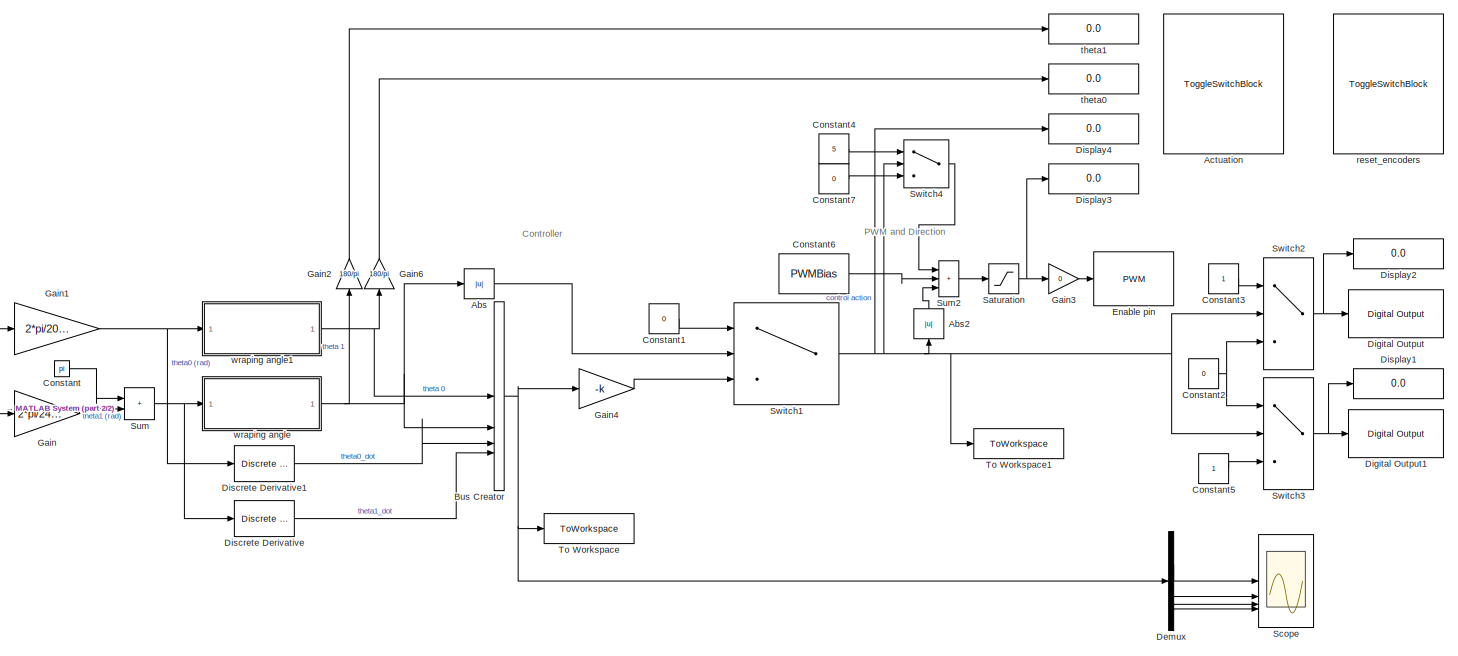
[diagram: root canvas - part 1/2, most of the canvas]
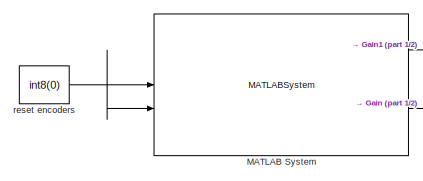
[diagram: root canvas - part 2/2, middle left region]
MODEL slx_16f599e33e60
KIND model
CONFIG AbsTol = auto
CONFIG EnableMultiTasking = on
CONFIG FixedStep = 0.005
CONFIG MaxStep = auto
CONFIG MinStep = auto
CONFIG RelTol = 1e-3
CONFIG SampleTimeConstraint = Unconstrained
CONFIG SolverName = FixedStepDiscrete
CONFIG StartTime = 0.0
CONFIG StopTime = inf
BLOCK [Abs] Abs
  SaturateOnIntegerOverflow = off
BLOCK [Abs] Abs2
  NameLocation = right
  SaturateOnIntegerOverflow = off
BLOCK [ToggleSwitchBlock] Actuation
  LabelPosition = Hide
BLOCK [BusCreator] Bus Creator
  DisplayOption = bar
  InheritFromInputs = on
  Inputs = 4
BLOCK [Constant] Constant
  Value = pi
BLOCK [Constant] Constant1
  Value = 0
BLOCK [Constant] Constant2
  Value = 0
BLOCK [Constant] Constant3
BLOCK [Constant] Constant4
  Value = 5
BLOCK [Constant] Constant5
BLOCK [Constant] Constant6
  Value = PWMBias
BLOCK [Constant] Constant7
  Value = 0
BLOCK [Demux] Demux
BLOCK [Reference] Digital Output  REF=arduinolib/Digital Output
  SourceBlock = arduinolib/Digital Output
  SourceType = Arduino Digital Output
BLOCK [Reference] Digital Output1  REF=arduinolib/Digital Output
  SourceBlock = arduinolib/Digital Output
  SourceType = Arduino Digital Output
BLOCK [Reference] Discrete Derivative  REF=simulink/Discrete/Discrete Derivative
  SourceBlock = simulink/Discrete/Discrete Derivative
  SourceType = Discrete Derivative
BLOCK [Reference] Discrete Derivative1  REF=simulink/Discrete/Discrete Derivative
  SourceBlock = simulink/Discrete/Discrete Derivative
  SourceType = Discrete Derivative
BLOCK [Display] Display1
  Decimation = 1
BLOCK [Display] Display2
  Decimation = 1
BLOCK [Display] Display3
  Decimation = 1
BLOCK [Display] Display4
  Decimation = 1
BLOCK [Reference] Enable pin  REF=arduinolib/PWM
  SourceBlock = arduinolib/PWM
  SourceType = Arduino PWM
BLOCK [Gain] Gain
  Gain = 2*pi/2400
  ParamDataTypeStr = double
BLOCK [Gain] Gain1
  Gain = 2*pi/2000
  ParamDataTypeStr = double
BLOCK [Gain] Gain2
  Gain = 180/pi
  NameLocation = right
BLOCK [Gain] Gain3
  Gain = 0
BLOCK [Gain] Gain4
  Gain = -k
  Multiplication = Matrix(K*u) (u vector)
BLOCK [Gain] Gain6
  Gain = 180/pi
  NameLocation = right
BLOCK [MATLABSystem] MATLAB System
  Enc0A_Pin = 27
  Enc0B_Pin = 26
  Enc1A_Pin = 25
  Enc1B_Pin = 33
  MaskDisplay = color('white');plot([100,100,100,100]*1,[100,100,100,100]*1);plot([100,100,100,100]*0,[100,100,100,100]*0);color('blue');text(38, 92, 'IO Device Builder','horizontalAlignment', 'right');\ncolor('black');text(52,50,' DualEncoder','horizontalAlignment','center');\nport_label('input',1,'Reset_Enc0');port_label('input',2,'Reset_Enc1');port_label('output',1,'Enc0_Count');port_label('output',2,'Enc1_Count...<+3ch>
  MaskType = DualEncoder
  SampleTime = -1
  System = DualEncoder
BLOCK [Saturate] Saturation
  LowerLimit = 0
  UpperLimit = PWMSat
BLOCK [Scope] Scope
  Floating = off
  NumInputPorts = 4
  ScopeSpecificationString = Simulink.scopes.TimeScopeBlockCfg('CurrentConfiguration', extmgr.ConfigurationSet(extmgr.Configuration('Core','General UI',true),extmgr.Configuration('Core','Source UI',true),extmgr.Configuration('Sources','WiredSimulink',true,'DataLoggingVariableName','ScopeData1'),extmgr.Configuration('Visuals','Time Domain',true,'SerializedDisplays',{struct('MinYLimReal','-1.00000','MaxYLimReal','1.00000','YLab...<+3408ch>
BLOCK [Sum] Sum
  IconShape = rectangular
  Inputs = |++
BLOCK [Sum] Sum2
  IconShape = rectangular
  Inputs = |+++
BLOCK [Switch] Switch1
  Criteria = u2 > Threshold
  InputSameDT = off
  SaturateOnIntegerOverflow = off
  Threshold = 0.9
BLOCK [Switch] Switch2
  Criteria = u2 > Threshold
  InputSameDT = off
  SaturateOnIntegerOverflow = off
BLOCK [Switch] Switch3
  Criteria = u2 > Threshold
  InputSameDT = off
  SaturateOnIntegerOverflow = off
BLOCK [Switch] Switch4
  Criteria = u2 > Threshold
  InputSameDT = off
  SaturateOnIntegerOverflow = off
BLOCK [ToWorkspace] To Workspace
  FixptAsFi = on
  MaxDataPoints = 500
  SampleTime = -1
  SaveFormat = Timeseries
  VariableName = X_Mat
BLOCK [ToWorkspace] To Workspace1
  FixptAsFi = on
  MaxDataPoints = inf
  SampleTime = -1
  SaveFormat = Timeseries
  VariableName = Effort
BLOCK [Constant] reset encoders
  Value = int8(0)
BLOCK [ToggleSwitchBlock] reset_encoders
  LabelPosition = Hide
BLOCK [Display] theta0
  Decimation = 1
BLOCK [Display] theta1
  Decimation = 1
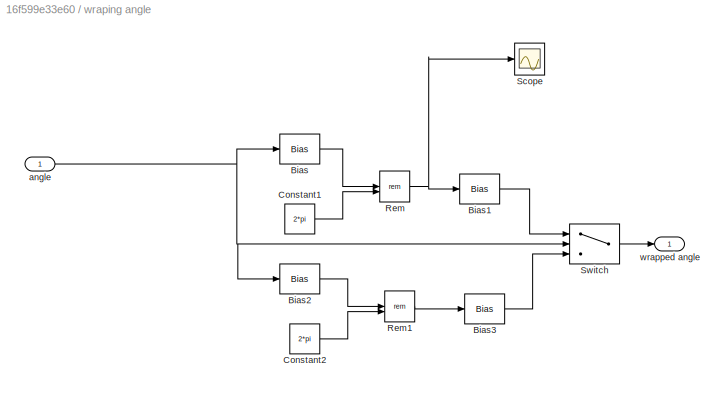
BLOCK [SubSystem] wraping angle
BLOCK [Bias] wraping angle/Bias
  Bias = pi
  SaturateOnIntegerOverflow = off
BLOCK [Bias] wraping angle/Bias1
  Bias = -pi
  SaturateOnIntegerOverflow = off
BLOCK [Bias] wraping angle/Bias2
  Bias = -pi
  SaturateOnIntegerOverflow = off
BLOCK [Bias] wraping angle/Bias3
  Bias = pi
  SaturateOnIntegerOverflow = off
BLOCK [Constant] wraping angle/Constant1
  Value = 2*pi
BLOCK [Constant] wraping angle/Constant2
  Value = 2*pi
BLOCK [Math] wraping angle/Rem
  Operator = rem
BLOCK [Math] wraping angle/Rem1
  Operator = rem
BLOCK [Scope] wraping angle/Scope
  Floating = off
  NumInputPorts = 1
  ScopeSpecificationString = Simulink.scopes.TimeScopeBlockCfg('CurrentConfiguration', extmgr.ConfigurationSet(extmgr.Configuration('Core','General UI',true),extmgr.Configuration('Core','Source UI',true),extmgr.Configuration('Sources','WiredSimulink',true),extmgr.Configuration('Visuals','Time Domain',true,'SerializedDisplays',{struct('MinYLimReal','-10.00000','MaxYLimReal','10.00000','YLabelReal','','MinYLimMag','0.00000','Ma...<+1326ch>
BLOCK [Switch] wraping angle/Switch
  Criteria = u2 > Threshold
  InputSameDT = off
  SaturateOnIntegerOverflow = off
BLOCK [Inport] wraping angle/angle
BLOCK [Outport] wraping angle/wrapped angle
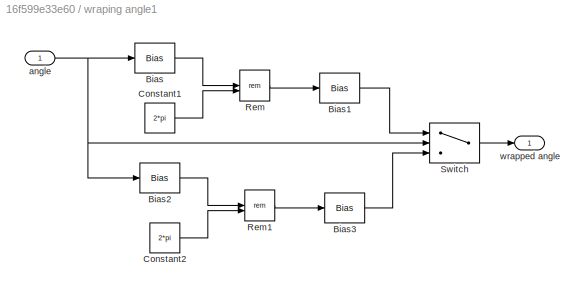
BLOCK [SubSystem] wraping angle1
BLOCK [Bias] wraping angle1/Bias
  Bias = pi
  SaturateOnIntegerOverflow = off
BLOCK [Bias] wraping angle1/Bias1
  Bias = -pi
  SaturateOnIntegerOverflow = off
BLOCK [Bias] wraping angle1/Bias2
  Bias = -pi
  SaturateOnIntegerOverflow = off
BLOCK [Bias] wraping angle1/Bias3
  Bias = pi
  SaturateOnIntegerOverflow = off
BLOCK [Constant] wraping angle1/Constant1
  Value = 2*pi
BLOCK [Constant] wraping angle1/Constant2
  Value = 2*pi
BLOCK [Math] wraping angle1/Rem
  Operator = rem
BLOCK [Math] wraping angle1/Rem1
  Operator = rem
BLOCK [Switch] wraping angle1/Switch
  Criteria = u2 > Threshold
  InputSameDT = off
  SaturateOnIntegerOverflow = off
BLOCK [Inport] wraping angle1/angle
BLOCK [Outport] wraping angle1/wrapped angle
ANNOTATION (root): Controller
ANNOTATION (root): PWM and Direction
LINE Abs2:1 -> Sum2:3
LINE Abs:1 -> Switch1:2
NET Bus Creator:1 -> Demux:1, Gain4:1, To Workspace:1
LINE Constant1:1 -> Switch1:1
NET Constant2:1 -> Switch2:3, Switch3:1
LINE Constant3:1 -> Switch2:1
LINE Constant4:1 -> Switch4:1
LINE Constant5:1 -> Switch3:3
LINE Constant6:1 -> Sum2:2
LINE Constant7:1 -> Switch4:3
LINE Constant:1 -> Sum:1
LINE Demux:1 -> Scope:1
LINE Demux:2 -> Scope:2
LINE Demux:3 -> Scope:3
LINE Demux:4 -> Scope:4
LINE Discrete Derivative1:1 -> Bus Creator:3
LINE Discrete Derivative:1 -> Bus Creator:4
NET Gain1:1 -> Discrete Derivative1:1, wraping angle1:1
LINE Gain2:1 -> theta1:1
LINE Gain3:1 -> Enable pin:1
LINE Gain4:1 -> Switch1:3
LINE Gain6:1 -> theta0:1
LINE Gain:1 -> Sum:2
LINE MATLAB System:1 -> Gain1:1
LINE MATLAB System:2 -> Gain:1
NET Saturation:1 -> Display3:1, Gain3:1
LINE Sum2:1 -> Saturation:1
NET Sum:1 -> Discrete Derivative:1, wraping angle:1
NET Switch1:1 -> Abs2:1, Display4:1, Switch2:2, Switch3:2, Switch4:2, To Workspace1:1
NET Switch2:1 -> Digital Output:1, Display2:1
NET Switch3:1 -> Digital Output1:1, Display1:1
LINE Switch4:1 -> Sum2:1
NET reset encoders:1 -> MATLAB System:1, MATLAB System:2
LINE wraping angle/Bias1:1 -> wraping angle/Switch:1
LINE wraping angle/Bias2:1 -> wraping angle/Rem1:1
LINE wraping angle/Bias3:1 -> wraping angle/Switch:3
LINE wraping angle/Bias:1 -> wraping angle/Rem:1
LINE wraping angle/Constant1:1 -> wraping angle/Rem:2
LINE wraping angle/Constant2:1 -> wraping angle/Rem1:2
LINE wraping angle/Rem1:1 -> wraping angle/Bias3:1
NET wraping angle/Rem:1 -> wraping angle/Bias1:1, wraping angle/Scope:1
LINE wraping angle/Switch:1 -> wraping angle/wrapped angle:1
NET wraping angle/angle:1 -> wraping angle/Bias2:1, wraping angle/Bias:1, wraping angle/Switch:2
LINE wraping angle1/Bias1:1 -> wraping angle1/Switch:1
LINE wraping angle1/Bias2:1 -> wraping angle1/Rem1:1
LINE wraping angle1/Bias3:1 -> wraping angle1/Switch:3
LINE wraping angle1/Bias:1 -> wraping angle1/Rem:1
LINE wraping angle1/Constant1:1 -> wraping angle1/Rem:2
LINE wraping angle1/Constant2:1 -> wraping angle1/Rem1:2
LINE wraping angle1/Rem1:1 -> wraping angle1/Bias3:1
LINE wraping angle1/Rem:1 -> wraping angle1/Bias1:1
LINE wraping angle1/Switch:1 -> wraping angle1/wrapped angle:1
NET wraping angle1/angle:1 -> wraping angle1/Bias2:1, wraping angle1/Bias:1, wraping angle1/Switch:2
NET wraping angle1:1 -> Bus Creator:1, Gain6:1
NET wraping angle:1 -> Abs:1, Bus Creator:2, Gain2:1
note: NET lines group one-source signal fan-out (src -> all destinations, sorted); 1:1 wires keep LINE
